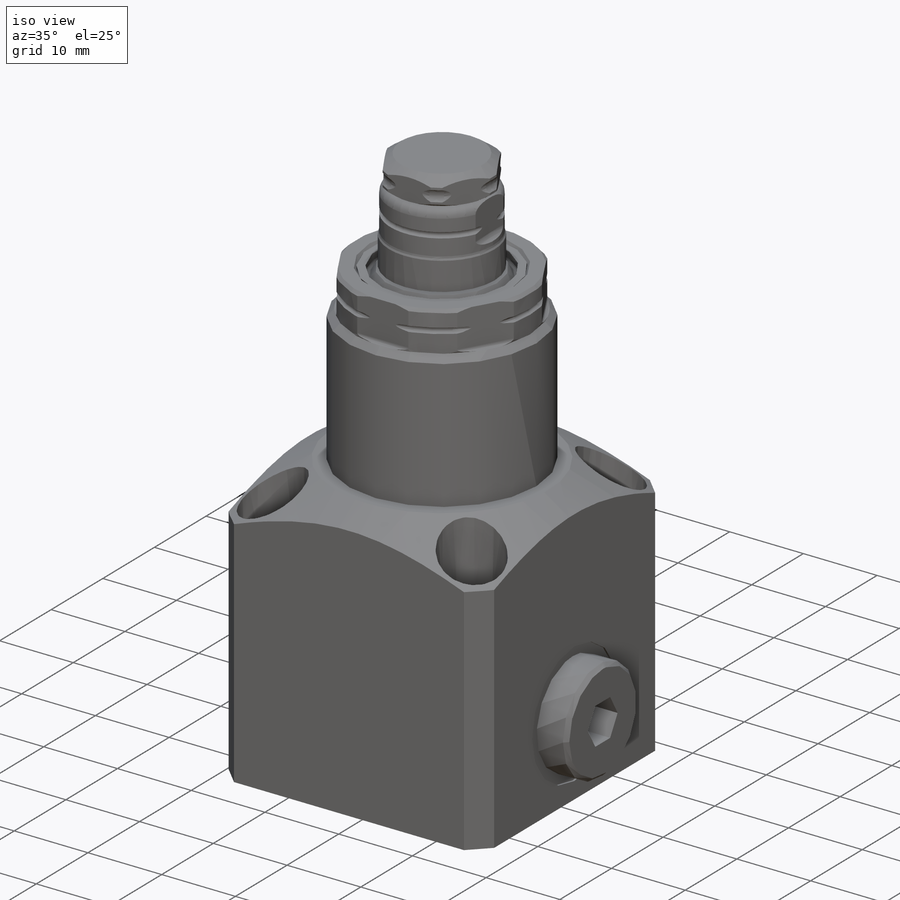
[diagram: iso view]
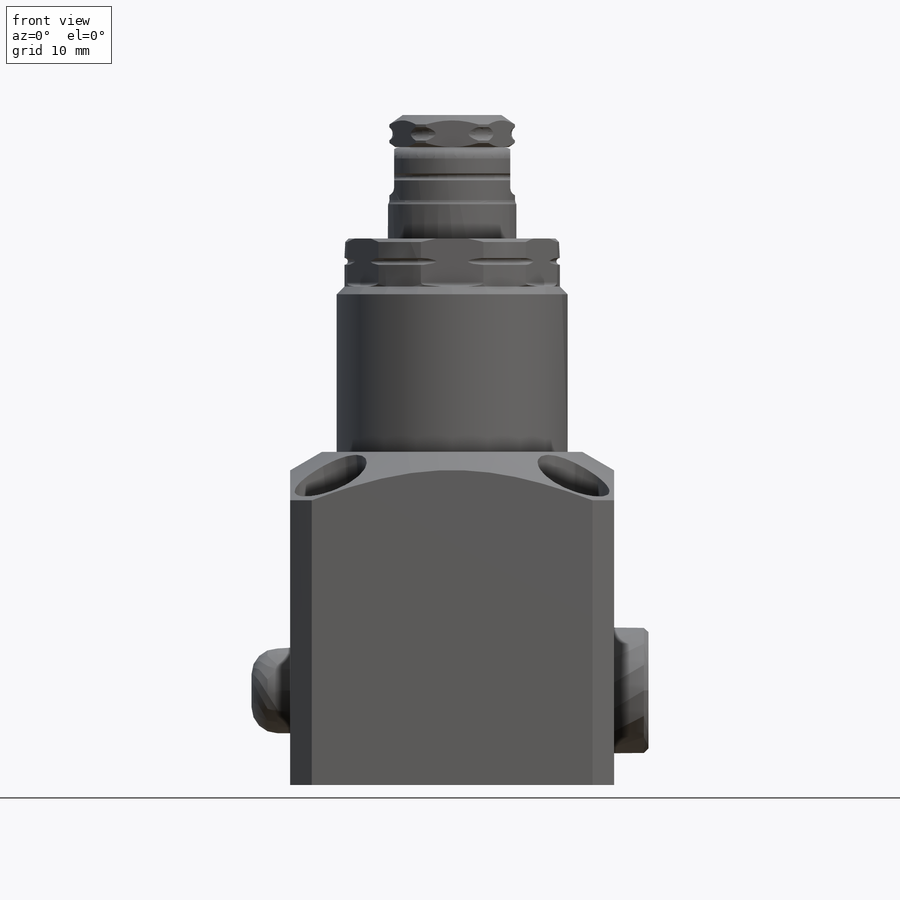
[diagram: front view]
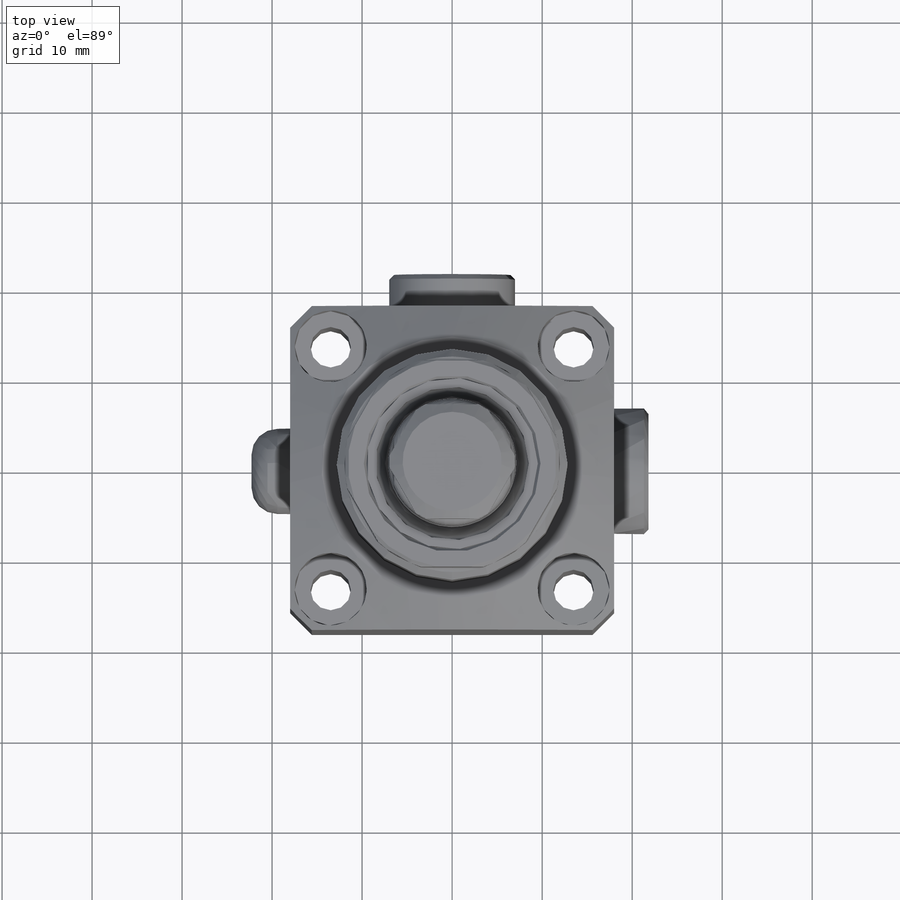
[diagram: top view]
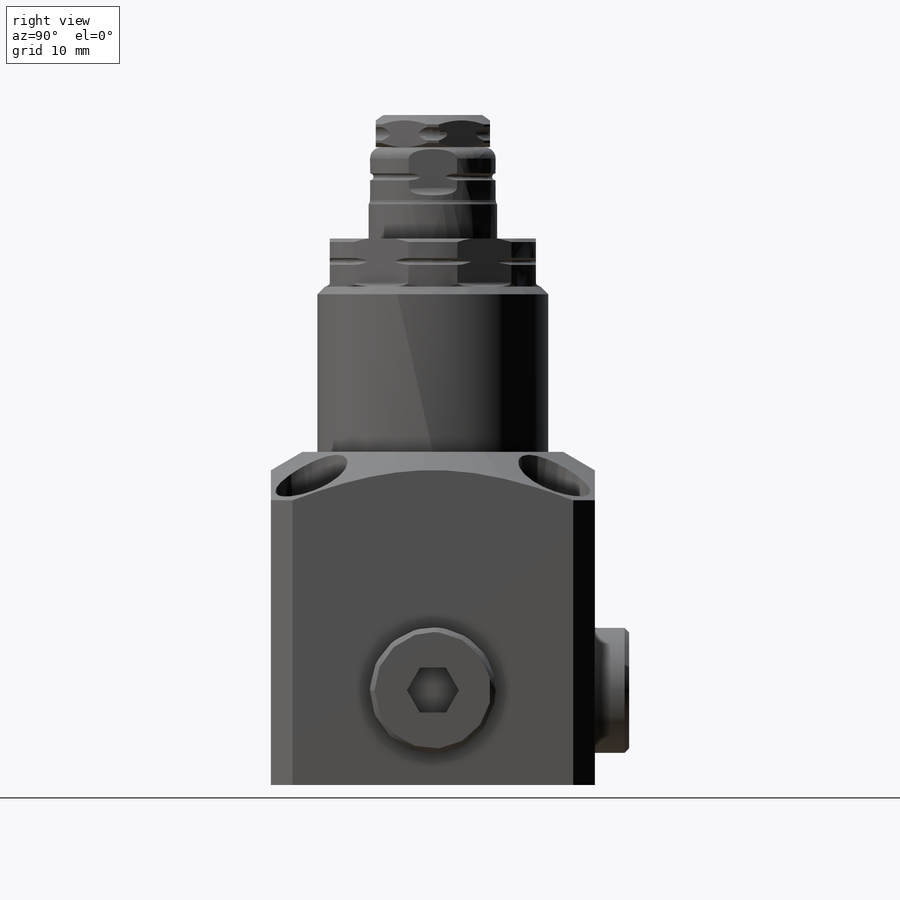
[diagram: right view]
SOLIDWORKS PART (.sldprt)
format: sldprt  version: not decoded by parser v0  size: 824,320 bytes
history: native  units: mm
features: sketch x20, cut_extrude x8, cut_revolve x5, extrude x5, fillet x4, revolve x2, material x1, chamfer x1 (+11 scaffold rows collapsed)
feature tree (57):
  scaffold x11  (default folders/planes/origin — collapsed)
  material  "Alloy Steel"
  sketch  "Sketch1"  dims[c1.D10=1.778mm c1.D21=0.508mm c1.D5=~90.802318mm c1.D26=~0.814283mm c2.D10=1.778mm c2.D1=25.146mm c2.D2=43.688mm c2.D3=~1.392436mm c3.D3=45.0deg c3.D4=~0.81663mm c4.D4=45.0deg c4.D5=~0.493551mm c5.D5=45.0deg c5.D6=6.1214mm c5.D7=2.54mm c5.D8=1.3208mm c5.D9=4.7752mm c5.D11=15.875mm c5.D12=17.4752mm c5.D13=23.3426mm c5.D14=0.381mm c5.D15=0.762mm c6.D5=4.9784mm c7.D5=45.0deg c8.D5=25.146mm c8.D16=~1.051559mm c9.D16=45.0deg c9.D17=1.016mm c9.D18=~0.251991mm c10.D18=60.0deg c10.D19=0.508mm c10.D20=1.016mm c10.D22=~1.223555mm c11.D22=30.0deg c11.D23=0.889mm c11.D24=0.2794mm c11.D5=25.654mm c11.D9=4.7752mm c11.D11=15.875mm c11.D12=17.4752mm c11.D13=23.32mm c11.D25=19.05mm c11.D26=1.143mm c11.D17=38.354mm c12.D26=~0.587541mm c13.D26=~138.662464deg c14.D26=~30.397699mm c15.D26=45.0deg c15.D27=23.927mm c15.D28=0.381mm]
  revolve  "Revolve1"  Angle=360deg
  sketch  "Sketch2"  dims[D1=22.9mm]
  cut_extrude  "Cut-Extrude1"  Depth=5.334mm
  fillet  "Fillet1"  Radius=0.4572mm
  sketch  "Sketch3"  dims[c1.D3=1.27mm c1.D1=14.28mm c1.D2=10.16mm c2.D3=6.35mm c2.D4=13.97mm]
  revolve  "Revolve2"  Angle=360deg
  fillet  "Fillet3"  Radius=0.762mm
  fillet  "Fillet4"  Radius=1.27mm
  sketch  "Sketch9"  dims[c1.D1=0.914mm c1.D2=5.436mm c1.D3=12.9mm c1.D4=4.0mm c2.D2=5.436mm c2.D3=4.0mm c2.D4=12.9mm]
  cut_extrude  "Cut-Extrude2"  Depth=10mm
  sketch  "Sketch10"  dims[c1.D4=0.381mm c1.D6=0.381mm c1.D1=0.762mm c1.D2=3.683mm c1.D3=7.747mm c2.D4=0.762mm c2.D5=2.54mm c2.D6=0.0mm]
  cut_revolve  "Cut-Revolve1"  Angle=360deg
  cut_revolve  "Cut-Revolve2"  [1 undecoded]
  sketch  "Sketch10<2>"  dims[D1=360.0deg]
  sketch  "Sketch11"  dims[c1.D1=12.7mm c2.D1=~60.262716deg]
  extrude  "Boss-Extrude1"  Depth=3.556mm
  sketch  "Sketch12"  dims[c1.D1=~1.066504mm c2.D1=35.0deg c2.D2=~0.164271mm c3.D2=35.0deg c3.D3=12.7mm c3.D4=10.998mm c3.D5=0.347mm]
  cut_revolve  "Cut-Revolve3"  Angle=360deg
  sketch  "Sketch13"  dims[D1=0.9144mm D2=0.533mm D3=0.0mm D4=2.083mm]
  cut_revolve  "Cut-Revolve4"  Angle=360deg
  sketch  "Sketch20"  dims[D1=37.0mm D2=36.0mm D3=18.0mm D4=23.706mm]
  extrude  "Boss-Extrude4"  Depth=36mm
  sketch  "Sketch21"  dims[D5=8.0mm D1=26.975mm D2=13.49mm D3=13.49mm D4=13.49mm]
  cut_extrude  "Cut-Extrude7"  Depth=9mm
  sketch  "Sketch22"  dims[D1=4.5mm]
  cut_extrude  "Cut-Extrude8"  [1 undecoded]
  sketch  "Sketch23"  dims[c1.D1=~10.445088mm c2.D1=30.0deg c2.D2=25.46mm c2.D3=29.0mm]
  cut_revolve  "Cut-Revolve5"  Angle=360deg
  sketch  "Sketch24"  dims[D1=47.63mm]
  cut_extrude  "Cut-Extrude11"  [1 undecoded]
  sketch  "Sketch25"  dims[D2=16.5mm D1=10.503mm]
  cut_extrude  "Cut-Extrude12"  Depth=0.254mm
  sketch  "Sketch26"  dims[D1=16.5mm D2=10.503mm]
  cut_extrude  "Cut-Extrude13"  Depth=0.254mm
  sketch  "Sketch27"  dims[c1.D1=13.97mm c1.D2=5.004mm c2.D2=~120.838988deg]
  extrude  "Boss-Extrude5"  Depth=4.064mm
  sketch  "Sketch28"  dims[c1.D1=13.97mm c1.D2=5.004mm c2.D2=~118.297417deg]
  extrude  "Boss-Extrude6"  Depth=4.064mm
  chamfer  "Chamfer2"  Distance=0.508mm Angle=45deg
  sketch  "Sketch30"  dims[c1.D2=9.5mm c1.D1=10.4933mm c1.D3=2.997mm c2.D3=~120.996381deg]
  extrude  "Boss-Extrude7"  Depth=4.2836mm
  fillet  "Fillet6"  Radius=2.8702mm
  sketch  "Sketch31"  dims[D3=10.389mm D1=7.0mm D2=7.0mm D4=8.992mm D5=~7.904927mm]
  cut_extrude  "Cut-Extrude15"  Depth=1.44mm
decode coverage: 42 of 45 modeling features carry decoded parameters
note: ~ marks probable driven/reference dimensions
note: 3 parameter values undecoded
summary: no parameter record found for 3 features
note: suppression state not decoded; provenance and decode notes live in map.json
